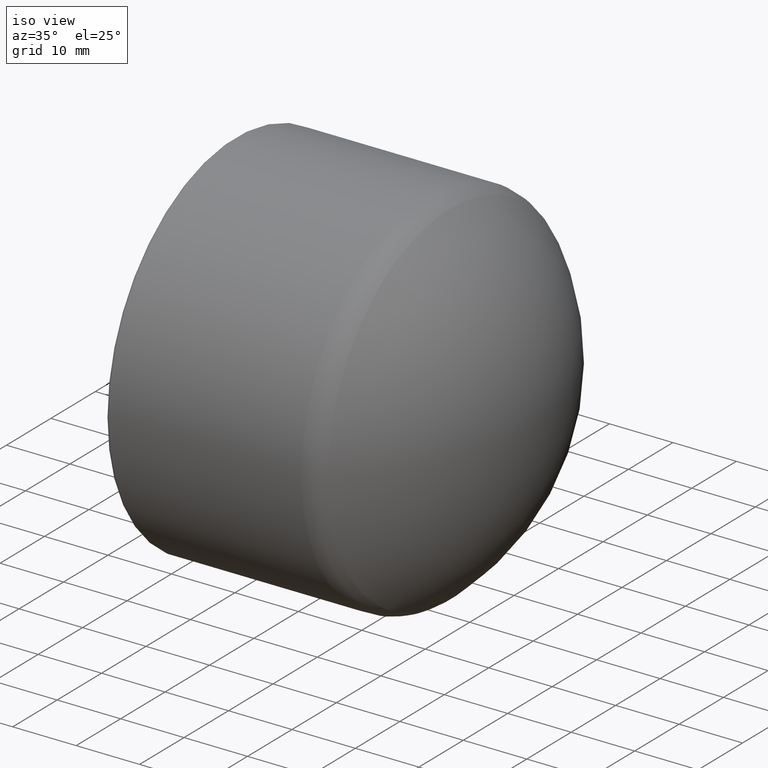
[diagram: clean part render]
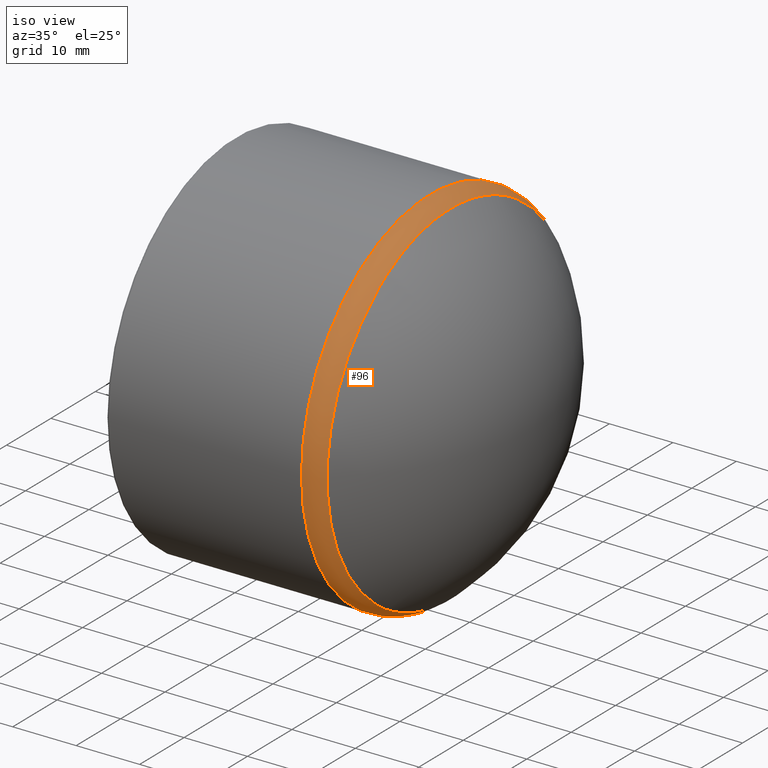
[diagram: same view with one face highlighted and labeled with its STEP entity id]
A machine part, iso view. The second image highlights one B-rep face of the part: STEP entity #96.
In plain terms, the highlighted toroidal blend (fillet) surface has major radius 24 mm and minor (blend) radius 5 mm.
Its self-contained STEP definition (entity closure, byte-faithful):
#21=FACE_BOUND('',#38,.T.);
#28=FACE_OUTER_BOUND('',#37,.T.);
#37=EDGE_LOOP('',(#77));
#38=EDGE_LOOP('',(#78));
#53=CIRCLE('',#108,29.);
#54=CIRCLE('',#109,27.8307637502382);
#61=VERTEX_POINT('',#162);
#62=VERTEX_POINT('',#164);
#69=EDGE_CURVE('',#61,#61,#53,.T.);
#70=EDGE_CURVE('',#62,#62,#54,.T.);
#77=ORIENTED_EDGE('',*,*,#69,.T.);
#78=ORIENTED_EDGE('',*,*,#70,.T.);
#93=TOROIDAL_SURFACE('',#107,24.,5.);
#96=ADVANCED_FACE('',(#28,#21),#93,.T.);
#107=AXIS2_PLACEMENT_3D('',#161,#126,#127);
#108=AXIS2_PLACEMENT_3D('',#163,#128,#129);
#109=AXIS2_PLACEMENT_3D('',#165,#130,#131);
#126=DIRECTION('center_axis',(1.,1.93071343521368E-16,0.));
#127=DIRECTION('ref_axis',(0.,0.,-1.));
#128=DIRECTION('center_axis',(1.,1.93071343521368E-16,0.));
#129=DIRECTION('ref_axis',(1.91417762866406E-16,-1.,1.83697019872103E-16));
#130=DIRECTION('center_axis',(-1.,-1.93071343521368E-16,0.));
#131=DIRECTION('ref_axis',(1.91417762866406E-16,-1.,1.83697019872103E-16));
#161=CARTESIAN_POINT('Origin',(-16.1938457458085,-3.12656755492104E-15,
0.));
#162=CARTESIAN_POINT('',(-16.1938457458085,29.,-1.77573785876366E-15));
#163=CARTESIAN_POINT('Origin',(-16.1938457458085,-3.12656755492104E-15,
0.));
#164=CARTESIAN_POINT('',(-12.9805531836752,27.8307637502382,-8.52071393613885E-15));
#165=CARTESIAN_POINT('Origin',(-12.9805531836752,-2.91555562907873E-15,
0.));